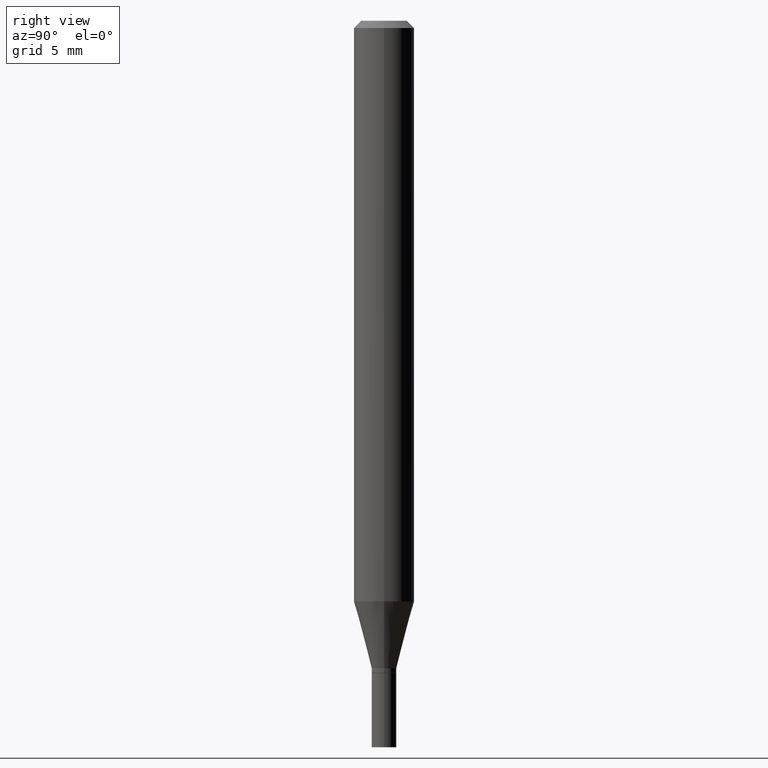
[diagram: clean part render]
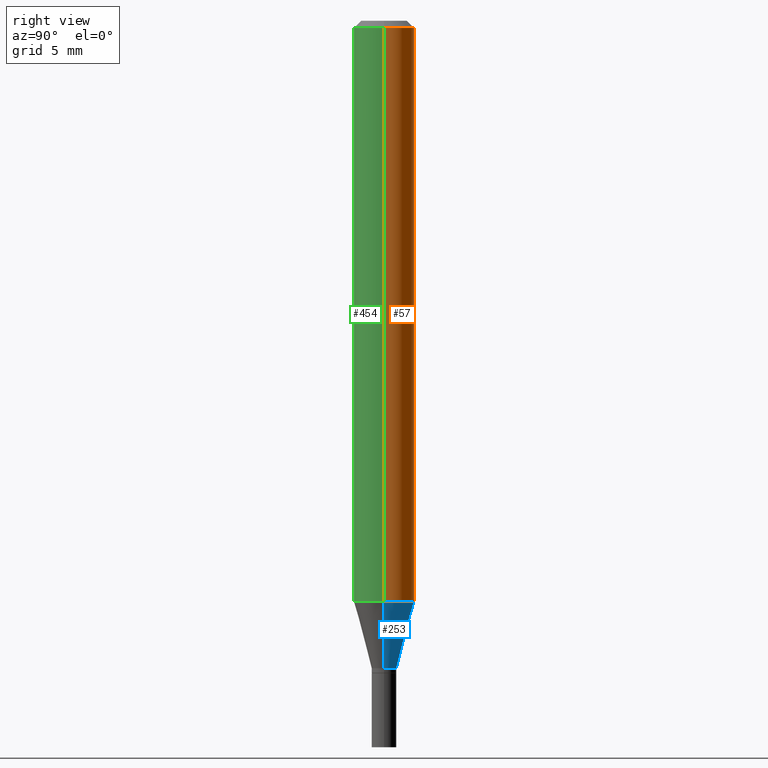
[diagram: same view with three faces highlighted in distinct colors, each labeled with its STEP entity id]
A machine part, right view with three faces highlighted in distinct colors.
Their STEP definitions:

[orange] entity #57 — the highlighted cylindrical surface (edge-blend (fillet) strip) has radius 1.5875 mm, axis along (-0, 0, 1).
#4 = DIRECTION ( 'NONE',  ( -2.445468806185136597E-29, 3.491481338843145583E-15, 1.000000000000000000 ) ) ;
#13 = VECTOR ( 'NONE', #104, 39.37007874015748143 ) ;
#23 = DIRECTION ( 'NONE',  ( -2.445468806185136597E-29, 3.491481338843145583E-15, 1.000000000000000000 ) ) ;
#46 = DIRECTION ( 'NONE',  ( -2.445468806185136877E-29, 3.491481338843145188E-15, 1.000000000000000000 ) ) ;
#57 = ADVANCED_FACE ( 'NONE', ( #204 ), #166, .T. ) ;
#75 = VECTOR ( 'NONE', #46, 39.37007874015748143 ) ;
#82 = LINE ( 'NONE', #227, #75 ) ;
#100 = EDGE_CURVE ( 'NONE', #297, #295, #200, .T. ) ;
#104 = DIRECTION ( 'NONE',  ( -2.445468806185136877E-29, 3.491481338843145188E-15, 1.000000000000000000 ) ) ;
#116 = EDGE_LOOP ( 'NONE', ( #388, #216, #305, #349 ) ) ;
#120 = AXIS2_PLACEMENT_3D ( 'NONE', #250, #359, #291 ) ;
#132 = DIRECTION ( 'NONE',  ( 1.000000000000000000, -6.982962677686266711E-15, 0.000000000000000000 ) ) ;
#135 = CARTESIAN_POINT ( 'NONE',  ( 3.668203209277705088E-31, -5.237222008264718399E-17, -0.01499999999999999944 ) ) ;
#141 = LINE ( 'NONE', #430, #13 ) ;
#165 = CARTESIAN_POINT ( 'NONE',  ( -0.06250000000000000000, -1.675090038828441136E-15, -0.01499999999999999944 ) ) ;
#166 = CYLINDRICAL_SURFACE ( 'NONE', #120, 0.06250000000000000000 ) ;
#182 = EDGE_CURVE ( 'NONE', #217, #435, #444, .T. ) ;
#187 = EDGE_CURVE ( 'NONE', #217, #297, #141, .T. ) ;
#200 = CIRCLE ( 'NONE', #462, 0.06250000000000000000 ) ;
#204 = FACE_OUTER_BOUND ( 'NONE', #116, .T. ) ;
#216 = ORIENTED_EDGE ( 'NONE', *, *, #300, .T. ) ;
#217 = VERTEX_POINT ( 'NONE', #273 ) ;
#227 = CARTESIAN_POINT ( 'NONE',  ( -0.06250000000000000000, 4.440892098500626162E-16, -3.074334431409316114E-30 ) ) ;
#241 = CARTESIAN_POINT ( 'NONE',  ( 2.931907082048241438E-29, -4.185986277274360030E-15, -1.198914120119951576 ) ) ;
#250 = CARTESIAN_POINT ( 'NONE',  ( 0.000000000000000000, 0.000000000000000000, 0.000000000000000000 ) ) ;
#258 = CARTESIAN_POINT ( 'NONE',  ( -0.06250000000000000000, -3.741897067424298203E-15, -1.198914120119951576 ) ) ;
#273 = CARTESIAN_POINT ( 'NONE',  ( 0.06250000000000000000, -4.622421444629751700E-15, -1.198914120119951576 ) ) ;
#291 = DIRECTION ( 'NONE',  ( 1.000000000000000000, -6.982962677686266711E-15, 4.876176775795935793E-29 ) ) ;
#295 = VERTEX_POINT ( 'NONE', #165 ) ;
#297 = VERTEX_POINT ( 'NONE', #320 ) ;
#300 = EDGE_CURVE ( 'NONE', #435, #295, #82, .T. ) ;
#305 = ORIENTED_EDGE ( 'NONE', *, *, #100, .F. ) ;
#320 = CARTESIAN_POINT ( 'NONE',  ( 0.06250000000000000000, -4.888073874380388472E-16, -0.01499999999999999944 ) ) ;
#349 = ORIENTED_EDGE ( 'NONE', *, *, #187, .F. ) ;
#359 = DIRECTION ( 'NONE',  ( -2.445468806185136597E-29, 3.491481338843145583E-15, 1.000000000000000000 ) ) ;
#374 = DIRECTION ( 'NONE',  ( 1.000000000000000000, -6.982962677686262766E-15, 0.000000000000000000 ) ) ;
#380 = AXIS2_PLACEMENT_3D ( 'NONE', #241, #4, #374 ) ;
#388 = ORIENTED_EDGE ( 'NONE', *, *, #182, .T. ) ;
#430 = CARTESIAN_POINT ( 'NONE',  ( 0.06250000000000000000, -4.364351673553916694E-16, 3.047610484872459871E-30 ) ) ;
#435 = VERTEX_POINT ( 'NONE', #258 ) ;
#444 = CIRCLE ( 'NONE', #380, 0.06250000000000000000 ) ;
#462 = AXIS2_PLACEMENT_3D ( 'NONE', #135, #23, #132 ) ;

[blue] entity #253 — the highlighted conical surface has half-angle 15 deg.
#4 = DIRECTION ( 'NONE',  ( -2.445468806185136597E-29, 3.491481338843145583E-15, 1.000000000000000000 ) ) ;
#15 = EDGE_CURVE ( 'NONE', #181, #435, #58, .T. ) ;
#18 = DIRECTION ( 'NONE',  ( -2.445468806185136597E-29, 3.491481338843145583E-15, 1.000000000000000000 ) ) ;
#24 = DIRECTION ( 'NONE',  ( 1.000000000000000000, -6.982962677686258822E-15, 0.000000000000000000 ) ) ;
#32 = EDGE_CURVE ( 'NONE', #381, #181, #64, .T. ) ;
#56 = DIRECTION ( 'NONE',  ( 0.2588190451025211836, 1.565188264969622559E-15, 0.9659258262890679791 ) ) ;
#58 = LINE ( 'NONE', #270, #232 ) ;
#64 = CIRCLE ( 'NONE', #146, 0.02549999999999992203 ) ;
#68 = ORIENTED_EDGE ( 'NONE', *, *, #182, .F. ) ;
#115 = CARTESIAN_POINT ( 'NONE',  ( 0.02549999999999992203, -4.846176098314284811E-15, -1.336999999999999966 ) ) ;
#126 = DIRECTION ( 'NONE',  ( -0.2588190451025211836, 5.211531920934547886E-15, 0.9659258262890679791 ) ) ;
#133 = CARTESIAN_POINT ( 'NONE',  ( 0.02549999999999992203, -4.846176098314284811E-15, -1.336999999999999966 ) ) ;
#146 = AXIS2_PLACEMENT_3D ( 'NONE', #377, #313, #274 ) ;
#157 = EDGE_LOOP ( 'NONE', ( #254, #161, #68, #408 ) ) ;
#159 = LINE ( 'NONE', #133, #179 ) ;
#161 = ORIENTED_EDGE ( 'NONE', *, *, #15, .T. ) ;
#179 = VECTOR ( 'NONE', #56, 39.37007874015748854 ) ;
#181 = VERTEX_POINT ( 'NONE', #226 ) ;
#182 = EDGE_CURVE ( 'NONE', #217, #435, #444, .T. ) ;
#217 = VERTEX_POINT ( 'NONE', #273 ) ;
#226 = CARTESIAN_POINT ( 'NONE',  ( -0.02549999999999992203, -4.114409609919379013E-15, -1.336999999999999966 ) ) ;
#232 = VECTOR ( 'NONE', #126, 39.37007874015748854 ) ;
#241 = CARTESIAN_POINT ( 'NONE',  ( 2.931907082048241438E-29, -4.185986277274360030E-15, -1.198914120119951576 ) ) ;
#253 = ADVANCED_FACE ( 'NONE', ( #389 ), #352, .T. ) ;
#254 = ORIENTED_EDGE ( 'NONE', *, *, #32, .T. ) ;
#255 = EDGE_CURVE ( 'NONE', #381, #217, #159, .T. ) ;
#258 = CARTESIAN_POINT ( 'NONE',  ( -0.06250000000000000000, -3.741897067424298203E-15, -1.198914120119951576 ) ) ;
#270 = CARTESIAN_POINT ( 'NONE',  ( -0.02549999999999992203, -4.486922152414460611E-15, -1.336999999999999966 ) ) ;
#273 = CARTESIAN_POINT ( 'NONE',  ( 0.06250000000000000000, -4.622421444629751700E-15, -1.198914120119951576 ) ) ;
#274 = DIRECTION ( 'NONE',  ( 1.000000000000000000, -6.982962677686258822E-15, 0.000000000000000000 ) ) ;
#313 = DIRECTION ( 'NONE',  ( -2.445468806185136597E-29, 3.491481338843145583E-15, 1.000000000000000000 ) ) ;
#351 = CARTESIAN_POINT ( 'NONE',  ( 3.269591793869527285E-29, -4.668110550033285925E-15, -1.336999999999999966 ) ) ;
#352 = CONICAL_SURFACE ( 'NONE', #360, 0.02549999999999992203, 0.2617993877991499074 ) ;
#360 = AXIS2_PLACEMENT_3D ( 'NONE', #351, #18, #24 ) ;
#374 = DIRECTION ( 'NONE',  ( 1.000000000000000000, -6.982962677686262766E-15, 0.000000000000000000 ) ) ;
#377 = CARTESIAN_POINT ( 'NONE',  ( 3.269591793869527285E-29, -4.668110550033285925E-15, -1.336999999999999966 ) ) ;
#380 = AXIS2_PLACEMENT_3D ( 'NONE', #241, #4, #374 ) ;
#381 = VERTEX_POINT ( 'NONE', #115 ) ;
#389 = FACE_OUTER_BOUND ( 'NONE', #157, .T. ) ;
#408 = ORIENTED_EDGE ( 'NONE', *, *, #255, .F. ) ;
#435 = VERTEX_POINT ( 'NONE', #258 ) ;
#444 = CIRCLE ( 'NONE', #380, 0.06250000000000000000 ) ;

[green] entity #454 — the highlighted cylindrical surface (edge-blend (fillet) strip) has radius 1.5875 mm, axis along (-0, 0, 1).
#13 = VECTOR ( 'NONE', #104, 39.37007874015748143 ) ;
#46 = DIRECTION ( 'NONE',  ( -2.445468806185136877E-29, 3.491481338843145188E-15, 1.000000000000000000 ) ) ;
#65 = DIRECTION ( 'NONE',  ( 1.000000000000000000, -6.982962677686266711E-15, 0.000000000000000000 ) ) ;
#70 = AXIS2_PLACEMENT_3D ( 'NONE', #249, #397, #65 ) ;
#73 = CARTESIAN_POINT ( 'NONE',  ( 0.000000000000000000, 0.000000000000000000, 0.000000000000000000 ) ) ;
#75 = VECTOR ( 'NONE', #46, 39.37007874015748143 ) ;
#82 = LINE ( 'NONE', #227, #75 ) ;
#86 = ORIENTED_EDGE ( 'NONE', *, *, #187, .T. ) ;
#90 = EDGE_LOOP ( 'NONE', ( #316, #174, #86, #437 ) ) ;
#104 = DIRECTION ( 'NONE',  ( -2.445468806185136877E-29, 3.491481338843145188E-15, 1.000000000000000000 ) ) ;
#108 = FACE_OUTER_BOUND ( 'NONE', #90, .T. ) ;
#141 = LINE ( 'NONE', #430, #13 ) ;
#154 = AXIS2_PLACEMENT_3D ( 'NONE', #73, #218, #212 ) ;
#156 = DIRECTION ( 'NONE',  ( -2.445468806185136597E-29, 3.491481338843145583E-15, 1.000000000000000000 ) ) ;
#165 = CARTESIAN_POINT ( 'NONE',  ( -0.06250000000000000000, -1.675090038828441136E-15, -0.01499999999999999944 ) ) ;
#168 = AXIS2_PLACEMENT_3D ( 'NONE', #420, #156, #460 ) ;
#174 = ORIENTED_EDGE ( 'NONE', *, *, #322, .T. ) ;
#187 = EDGE_CURVE ( 'NONE', #217, #297, #141, .T. ) ;
#201 = EDGE_CURVE ( 'NONE', #295, #297, #242, .T. ) ;
#212 = DIRECTION ( 'NONE',  ( 1.000000000000000000, -6.982962677686266711E-15, 4.876176775795935793E-29 ) ) ;
#217 = VERTEX_POINT ( 'NONE', #273 ) ;
#218 = DIRECTION ( 'NONE',  ( -2.445468806185136597E-29, 3.491481338843145583E-15, 1.000000000000000000 ) ) ;
#227 = CARTESIAN_POINT ( 'NONE',  ( -0.06250000000000000000, 4.440892098500626162E-16, -3.074334431409316114E-30 ) ) ;
#242 = CIRCLE ( 'NONE', #70, 0.06250000000000000000 ) ;
#249 = CARTESIAN_POINT ( 'NONE',  ( 3.668203209277705088E-31, -5.237222008264718399E-17, -0.01499999999999999944 ) ) ;
#258 = CARTESIAN_POINT ( 'NONE',  ( -0.06250000000000000000, -3.741897067424298203E-15, -1.198914120119951576 ) ) ;
#273 = CARTESIAN_POINT ( 'NONE',  ( 0.06250000000000000000, -4.622421444629751700E-15, -1.198914120119951576 ) ) ;
#295 = VERTEX_POINT ( 'NONE', #165 ) ;
#297 = VERTEX_POINT ( 'NONE', #320 ) ;
#300 = EDGE_CURVE ( 'NONE', #435, #295, #82, .T. ) ;
#316 = ORIENTED_EDGE ( 'NONE', *, *, #300, .F. ) ;
#320 = CARTESIAN_POINT ( 'NONE',  ( 0.06250000000000000000, -4.888073874380388472E-16, -0.01499999999999999944 ) ) ;
#322 = EDGE_CURVE ( 'NONE', #435, #217, #354, .T. ) ;
#340 = CYLINDRICAL_SURFACE ( 'NONE', #154, 0.06250000000000000000 ) ;
#354 = CIRCLE ( 'NONE', #168, 0.06250000000000000000 ) ;
#397 = DIRECTION ( 'NONE',  ( -2.445468806185136597E-29, 3.491481338843145583E-15, 1.000000000000000000 ) ) ;
#420 = CARTESIAN_POINT ( 'NONE',  ( 2.931907082048241438E-29, -4.185986277274360030E-15, -1.198914120119951576 ) ) ;
#430 = CARTESIAN_POINT ( 'NONE',  ( 0.06250000000000000000, -4.364351673553916694E-16, 3.047610484872459871E-30 ) ) ;
#435 = VERTEX_POINT ( 'NONE', #258 ) ;
#437 = ORIENTED_EDGE ( 'NONE', *, *, #201, .F. ) ;
#454 = ADVANCED_FACE ( 'NONE', ( #108 ), #340, .T. ) ;
#460 = DIRECTION ( 'NONE',  ( 1.000000000000000000, -6.982962677686262766E-15, 0.000000000000000000 ) ) ;